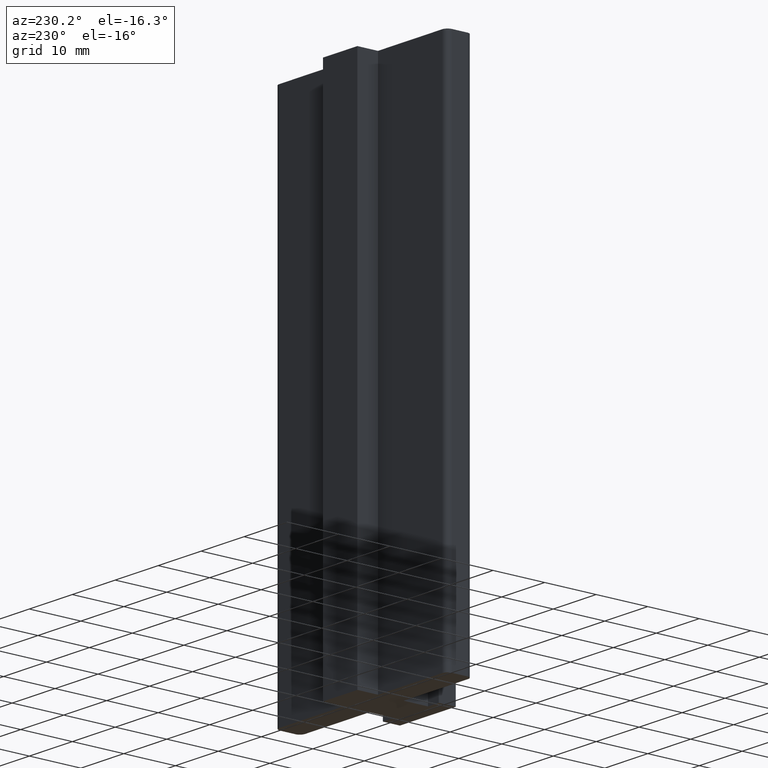
[diagram: clean part render]
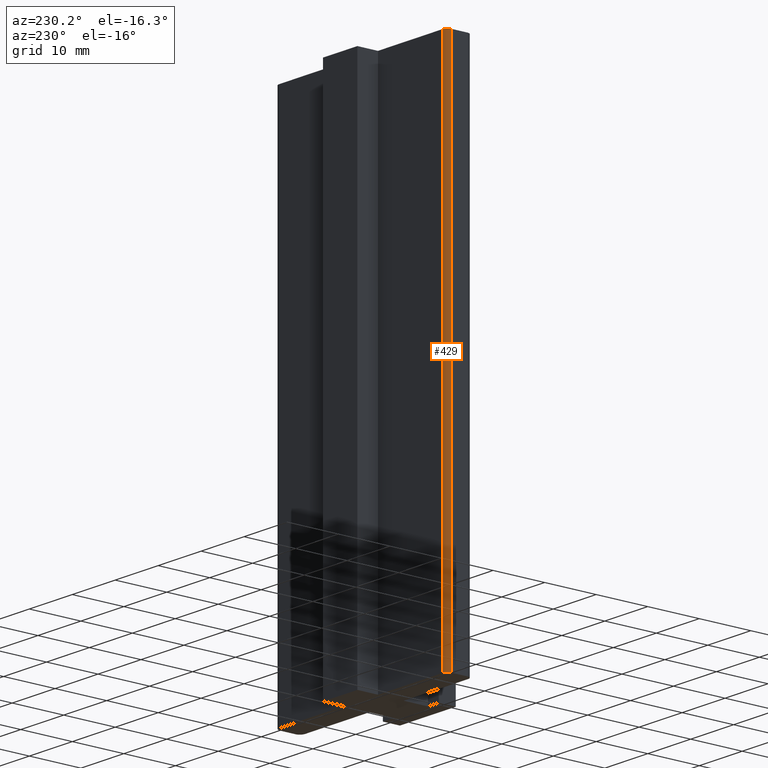
[diagram: same view with one face highlighted and labeled with its STEP entity id]
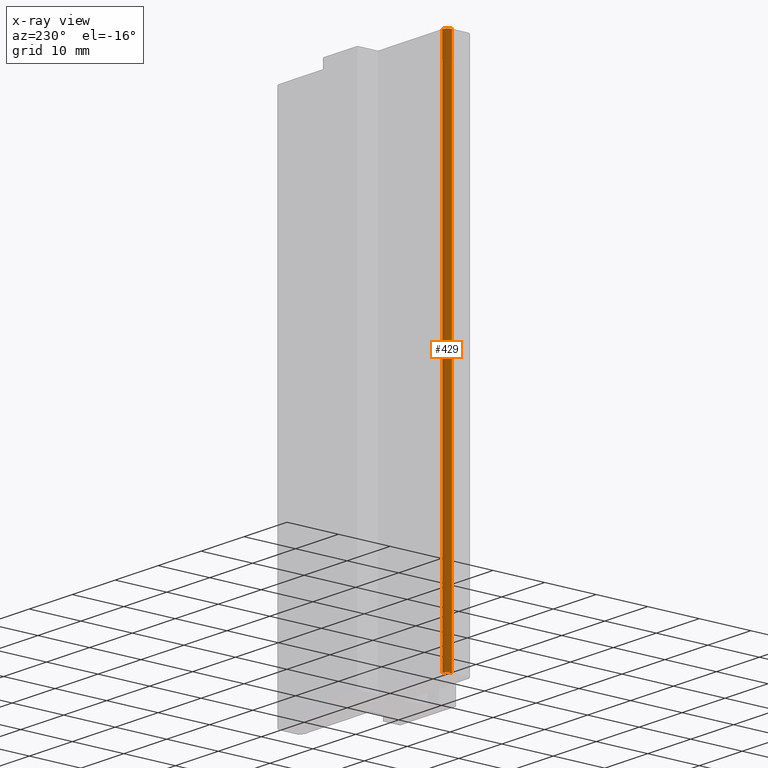
[diagram: x-ray of the same camera — body ghosted, the highlighted face saturated]
A machine part, auxiliary view. The second image highlights one B-rep face of the part: STEP entity #429.
The next image is the same camera in x-ray: the body ghosted, the highlighted face saturated — about 0% of this face is hidden behind the body in this view.
In plain terms, the highlighted cylindrical surface (edge-blend (fillet) strip) has radius 1 mm, axis along (0, 0, 1).
Its self-contained STEP definition (entity closure, byte-faithful):
#21=CIRCLE('',#460,1.);
#22=CIRCLE('',#461,1.);
#26=CYLINDRICAL_SURFACE('',#459,1.);
#43=FACE_OUTER_BOUND('',#65,.T.);
#65=EDGE_LOOP('',(#339,#340,#341,#342));
#113=LINE('',#680,#165);
#114=LINE('',#686,#166);
#165=VECTOR('',#555,100.);
#166=VECTOR('',#562,100.);
#207=VERTEX_POINT('',#676);
#208=VERTEX_POINT('',#678);
#209=VERTEX_POINT('',#682);
#210=VERTEX_POINT('',#684);
#263=EDGE_CURVE('',#207,#208,#113,.T.);
#264=EDGE_CURVE('',#209,#207,#21,.T.);
#265=EDGE_CURVE('',#210,#208,#22,.T.);
#266=EDGE_CURVE('',#209,#210,#114,.T.);
#339=ORIENTED_EDGE('',*,*,#264,.T.);
#340=ORIENTED_EDGE('',*,*,#263,.T.);
#341=ORIENTED_EDGE('',*,*,#265,.F.);
#342=ORIENTED_EDGE('',*,*,#266,.F.);
#429=ADVANCED_FACE('',(#43),#26,.T.);
#459=AXIS2_PLACEMENT_3D('',#681,#556,#557);
#460=AXIS2_PLACEMENT_3D('',#683,#558,#559);
#461=AXIS2_PLACEMENT_3D('',#685,#560,#561);
#555=DIRECTION('',(0.,0.,1.));
#556=DIRECTION('center_axis',(0.,0.,1.));
#557=DIRECTION('ref_axis',(0.,1.,0.));
#558=DIRECTION('center_axis',(0.,0.,1.));
#559=DIRECTION('ref_axis',(0.,1.,0.));
#560=DIRECTION('center_axis',(0.,0.,1.));
#561=DIRECTION('ref_axis',(0.,1.,0.));
#562=DIRECTION('',(0.,0.,1.));
#676=CARTESIAN_POINT('',(-20.,6.35,0.));
#678=CARTESIAN_POINT('',(-20.,6.35,100.));
#680=CARTESIAN_POINT('',(-20.,6.35,0.));
#681=CARTESIAN_POINT('Origin',(-19.,6.35,0.));
#682=CARTESIAN_POINT('',(-19.,7.35,0.));
#683=CARTESIAN_POINT('Origin',(-19.,6.35,0.));
#684=CARTESIAN_POINT('',(-19.,7.35,100.));
#685=CARTESIAN_POINT('Origin',(-19.,6.35,100.));
#686=CARTESIAN_POINT('',(-19.,7.35,0.));